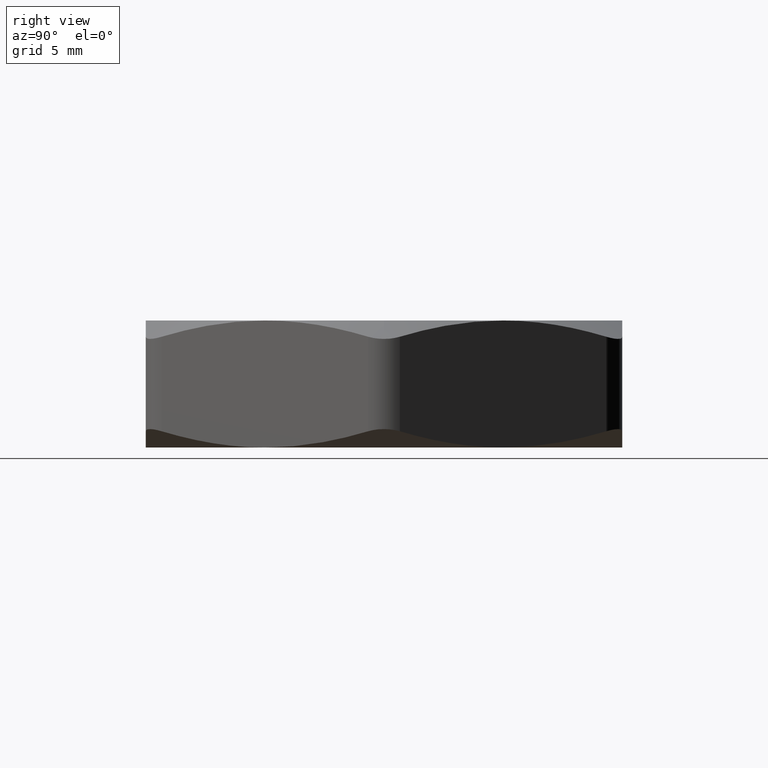
[diagram: clean part render]
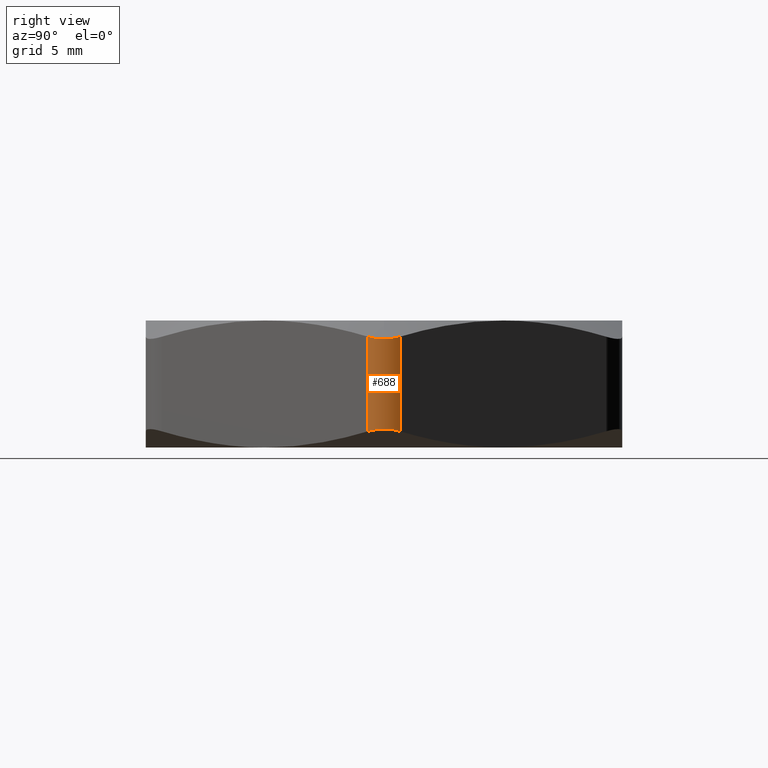
[diagram: same view with one face highlighted and labeled with its STEP entity id]
A machine part, right view. The second image highlights one B-rep face of the part: STEP entity #688.
In plain terms, the highlighted cylindrical surface (edge-blend (fillet) strip) has radius 1.27 mm, axis along (0, 0, -1).
Its self-contained STEP definition (entity closure, byte-faithful):
#257 = EDGE_CURVE ( 'NONE', #364, #262, #1397, .T. ) ;
#262 = VERTEX_POINT ( 'NONE', #1269 ) ;
#331 = EDGE_CURVE ( 'NONE', #378, #368, #1475, .T. ) ;
#363 = VERTEX_POINT ( 'NONE', #1488 ) ;
#364 = VERTEX_POINT ( 'NONE', #1487 ) ;
#368 = VERTEX_POINT ( 'NONE', #1567 ) ;
#378 = VERTEX_POINT ( 'NONE', #1593 ) ;
#464 = EDGE_CURVE ( 'NONE', #363, #364, #1923, .T. ) ;
#542 = ORIENTED_EDGE ( 'NONE', *, *, #613, .F. ) ;
#543 = ORIENTED_EDGE ( 'NONE', *, *, #331, .F. ) ;
#544 = ORIENTED_EDGE ( 'NONE', *, *, #581, .F. ) ;
#581 = EDGE_CURVE ( 'NONE', #262, #378, #1758, .T. ) ;
#613 = EDGE_CURVE ( 'NONE', #368, #363, #2027, .T. ) ;
#688 = ADVANCED_FACE ( 'NONE', ( #2062 ), #2057, .T. ) ;
#694 = ORIENTED_EDGE ( 'NONE', *, *, #257, .F. ) ;
#695 = ORIENTED_EDGE ( 'NONE', *, *, #464, .F. ) ;
#703 = EDGE_LOOP ( 'NONE', ( #542, #543, #544, #694, #695 ) ) ;
#1269 = CARTESIAN_POINT ( 'NONE',  ( 0.4185789451624787300, 0.02500000000000022300, 0.02559096649278917700 ) ) ;
#1336 = DIRECTION ( 'NONE',  ( 0.0000000000000000000, 0.0000000000000000000, -1.000000000000000000 ) ) ;
#1337 = VECTOR ( 'NONE', #1336, 39.37007874015748100 ) ;
#1396 = CARTESIAN_POINT ( 'NONE',  ( 0.4185789451624787300, 0.02500000000000020600, 0.2000000000000000100 ) ) ;
#1397 = LINE ( 'NONE', #1396, #1337 ) ;
#1447 = VECTOR ( 'NONE', #1476, 39.37007874015748100 ) ;
#1448 = CARTESIAN_POINT ( 'NONE',  ( 0.4185789451624787300, -0.02499999999999980000, 0.2000000000000000100 ) ) ;
#1475 = LINE ( 'NONE', #1448, #1447 ) ;
#1476 = DIRECTION ( 'NONE',  ( 0.0000000000000000000, 0.0000000000000000000, 1.000000000000000000 ) ) ;
#1487 = CARTESIAN_POINT ( 'NONE',  ( 0.4185789451624683500, 0.02500000000001819500, 0.1744090335072159800 ) ) ;
#1488 = CARTESIAN_POINT ( 'NONE',  ( 0.4252776749734100100, 1.775217355470834300E-014, 0.1709721708198838300 ) ) ;
#1567 = CARTESIAN_POINT ( 'NONE',  ( 0.4185789451624638600, -0.02500000000002559500, 0.1744090335072185400 ) ) ;
#1593 = CARTESIAN_POINT ( 'NONE',  ( 0.4185789451624683500, -0.02500000000001776500, 0.02559096649278397700 ) ) ;
#1746 = CARTESIAN_POINT ( 'NONE',  ( 0.4185789451624683500, -0.02500000000001776500, 0.02559096649278397700 ) ) ;
#1747 = CARTESIAN_POINT ( 'NONE',  ( 0.4207328757074450500, -0.02126928286014898700, 0.02670391018490996000 ) ) ;
#1748 = CARTESIAN_POINT ( 'NONE',  ( 0.4224255658445741400, -0.01720531331098183700, 0.02757112303379802600 ) ) ;
#1749 = CARTESIAN_POINT ( 'NONE',  ( 0.4246893983390691000, -0.008799318937460016300, 0.02872861903395080100 ) ) ;
#1750 = CARTESIAN_POINT ( 'NONE',  ( 0.4252813935054712800, -0.004352839928518964700, 0.02902972366464776100 ) ) ;
#1751 = CARTESIAN_POINT ( 'NONE',  ( 0.4252739203053133600, 0.004437852542509395000, 0.02902591628531999200 ) ) ;
#1752 = CARTESIAN_POINT ( 'NONE',  ( 0.4246841792461046900, 0.008842019655327637200, 0.02872597259901694600 ) ) ;
#1753 = CARTESIAN_POINT ( 'NONE',  ( 0.4223943948315133100, 0.01729736066128908700, 0.02755516287873829200 ) ) ;
#1754 = CARTESIAN_POINT ( 'NONE',  ( 0.4207322339030570800, 0.02127039449795229200, 0.02670357856226470600 ) ) ;
#1755 = CARTESIAN_POINT ( 'NONE',  ( 0.4185789451624787300, 0.02500000000000022300, 0.02559096649278917700 ) ) ;
#1758 = B_SPLINE_CURVE_WITH_KNOTS ( 'NONE', 3,
 ( #1755, #1754, #1753, #1752, #1751, #1750, #1749, #1748, #1747, #1746 ),
 .UNSPECIFIED., .F., .F.,
 ( 4, 2, 2, 2, 4 ),
 ( 1.212174879515270100E-018, 0.0003344051723305212400, 0.0006688103446610412900, 0.001003215516991561500, 0.001337620689322081500 ),
 .UNSPECIFIED. ) ;
#1915 = CARTESIAN_POINT ( 'NONE',  ( 0.4185789451624683500, 0.02500000000001819500, 0.1744090335072159800 ) ) ;
#1916 = CARTESIAN_POINT ( 'NONE',  ( 0.4207294041380170700, 0.02127529579478062300, 0.1732978835875520200 ) ) ;
#1917 = CARTESIAN_POINT ( 'NONE',  ( 0.4224201646834369600, 0.01721831756676478500, 0.1724316452166981000 ) ) ;
#1918 = CARTESIAN_POINT ( 'NONE',  ( 0.4246838449260745800, 0.008826956808419559100, 0.1712742138138432000 ) ) ;
#1919 = CARTESIAN_POINT ( 'NONE',  ( 0.4252776749732541900, 0.004388562669414881500, 0.1709721708199631600 ) ) ;
#1920 = CARTESIAN_POINT ( 'NONE',  ( 0.4252776749734100100, 1.775217355470834300E-014, 0.1709721708198838300 ) ) ;
#1923 = B_SPLINE_CURVE_WITH_KNOTS ( 'NONE', 3,
 ( #1920, #1919, #1918, #1917, #1916, #1915 ),
 .UNSPECIFIED., .F., .F.,
 ( 4, 2, 4 ),
 ( 0.0006698882910008022200, 0.001003754490161494400, 0.001337620689322186700 ),
 .UNSPECIFIED. ) ;
#2018 = CARTESIAN_POINT ( 'NONE',  ( 0.4252776749734100100, 1.775217355470834300E-014, 0.1709721708198838300 ) ) ;
#2019 = CARTESIAN_POINT ( 'NONE',  ( 0.4252776749732594100, -0.004402731923617974600, 0.1709721708199605500 ) ) ;
#2020 = CARTESIAN_POINT ( 'NONE',  ( 0.4246898574095619400, -0.008813925552672531200, 0.1712711308346979200 ) ) ;
#2021 = CARTESIAN_POINT ( 'NONE',  ( 0.4223997800579489800, -0.01728456736959242700, 0.1724420768014810800 ) ) ;
#2022 = CARTESIAN_POINT ( 'NONE',  ( 0.4207357044380651300, -0.02126438335498857100, 0.1732946281999496200 ) ) ;
#2023 = CARTESIAN_POINT ( 'NONE',  ( 0.4185789451624638600, -0.02500000000002559500, 0.1744090335072185400 ) ) ;
#2027 = B_SPLINE_CURVE_WITH_KNOTS ( 'NONE', 3,
 ( #2023, #2022, #2021, #2020, #2019, #2018 ),
 .UNSPECIFIED., .F., .F.,
 ( 4, 2, 4 ),
 ( 1.020068316774633100E-016, 0.0003349441455004521200, 0.0006698882910008022200 ),
 .UNSPECIFIED. ) ;
#2052 = DIRECTION ( 'NONE',  ( -1.000000000000000000, 0.0000000000000000000, 0.0000000000000000000 ) ) ;
#2053 = DIRECTION ( 'NONE',  ( 0.0000000000000000000, 0.0000000000000000000, -1.000000000000000000 ) ) ;
#2054 = CARTESIAN_POINT ( 'NONE',  ( 0.3752776749732568100, 2.048885995248197400E-016, 0.2000000000000000100 ) ) ;
#2055 = AXIS2_PLACEMENT_3D ( 'NONE', #2054, #2053, #2052 ) ;
#2057 = CYLINDRICAL_SURFACE ( 'NONE', #2055, 0.05000000000000001000 ) ;
#2062 = FACE_OUTER_BOUND ( 'NONE', #703, .T. ) ;